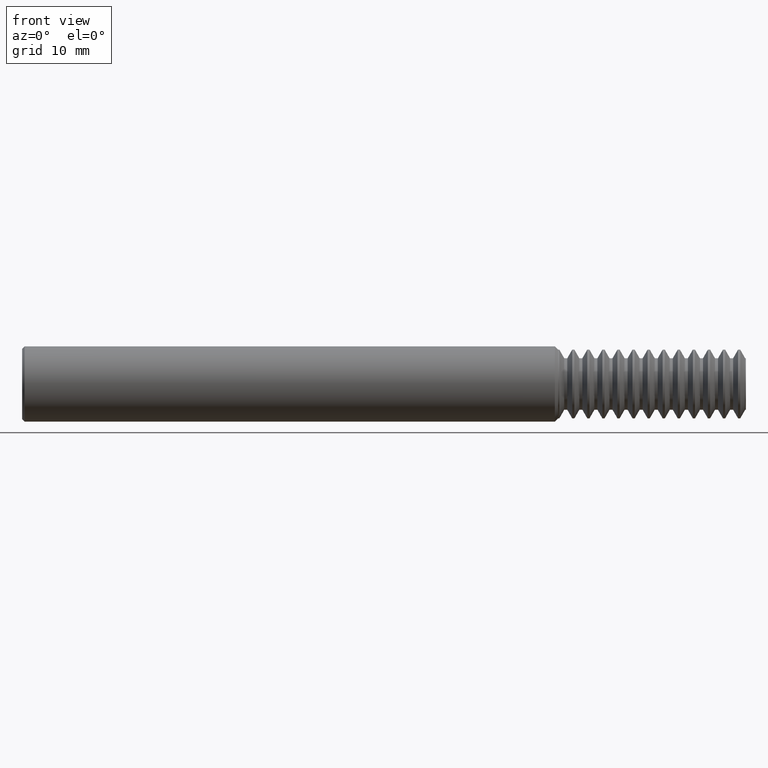
[diagram: clean part render]
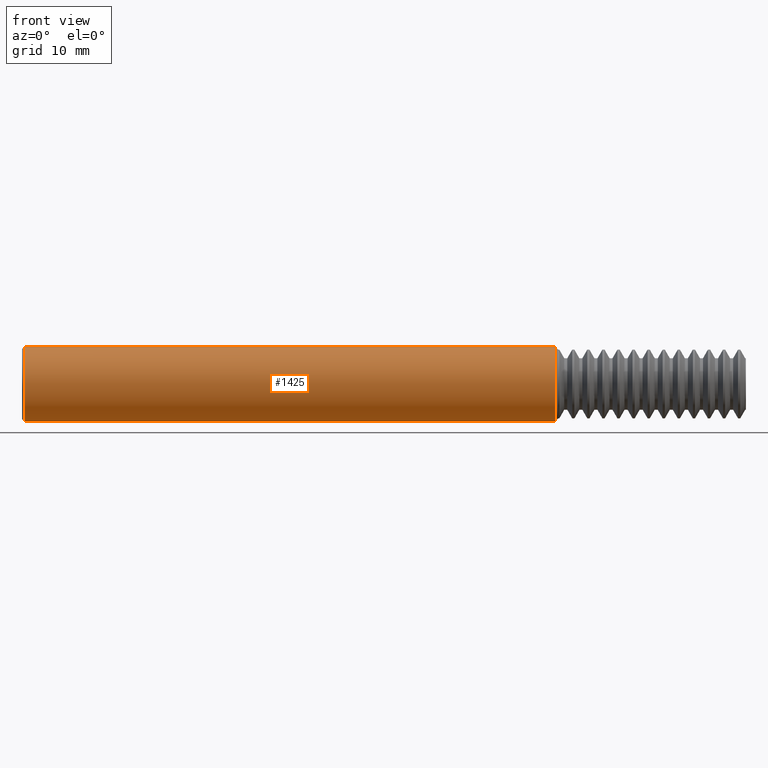
[diagram: same view with one face highlighted and labeled with its STEP entity id]
A machine part, front view. The second image highlights one B-rep face of the part: STEP entity #1425.
In plain terms, the highlighted cylindrical surface (partial cylindrical patch) has radius 3.9649 mm, axis along (1, -0, -0).
Its self-contained STEP definition (entity closure, byte-faithful):
#1 = DIRECTION ( 'NONE',  ( 1.000000000000000000, -0.000000000000000000, -0.000000000000000000 ) ) ;
#19 = DIRECTION ( 'NONE',  ( 1.000000000000000000, -0.000000000000000000, -0.000000000000000000 ) ) ;
#60 = CIRCLE ( 'NONE', #1655, 0.1560999999999999888 ) ;
#87 = EDGE_CURVE ( 'NONE', #390, #1171, #2182, .T. ) ;
#129 = VERTEX_POINT ( 'NONE', #2728 ) ;
#168 = DIRECTION ( 'NONE',  ( 1.000000000000000000, -0.000000000000000000, -0.000000000000000000 ) ) ;
#173 = EDGE_CURVE ( 'NONE', #2052, #1171, #60, .T. ) ;
#390 = VERTEX_POINT ( 'NONE', #687 ) ;
#429 = CIRCLE ( 'NONE', #1255, 0.1560999999999999888 ) ;
#598 = EDGE_LOOP ( 'NONE', ( #1330, #2144, #2450, #609 ) ) ;
#609 = ORIENTED_EDGE ( 'NONE', *, *, #173, .F. ) ;
#611 = AXIS2_PLACEMENT_3D ( 'NONE', #1015, #1701, #2581 ) ;
#666 = DIRECTION ( 'NONE',  ( 0.000000000000000000, 0.000000000000000000, 1.000000000000000000 ) ) ;
#687 = CARTESIAN_POINT ( 'NONE',  ( 0.01000000000000071318, 0.000000000000000000, -0.1560999999999999888 ) ) ;
#901 = CARTESIAN_POINT ( 'NONE',  ( 3.000000000000000444, 1.911673653469018068E-17, 0.1560999999999999888 ) ) ;
#1015 = CARTESIAN_POINT ( 'NONE',  ( 3.000000000000000444, 0.000000000000000000, 0.000000000000000000 ) ) ;
#1171 = VERTEX_POINT ( 'NONE', #2522 ) ;
#1255 = AXIS2_PLACEMENT_3D ( 'NONE', #1317, #1, #666 ) ;
#1317 = CARTESIAN_POINT ( 'NONE',  ( 0.01000000000000071318, 0.000000000000000000, 0.000000000000000000 ) ) ;
#1330 = ORIENTED_EDGE ( 'NONE', *, *, #1600, .F. ) ;
#1381 = CARTESIAN_POINT ( 'NONE',  ( 2.208400000000000141, 1.911673653469018068E-17, 0.1560999999999999888 ) ) ;
#1425 = ADVANCED_FACE ( 'NONE', ( #2332 ), #2089, .T. ) ;
#1594 = EDGE_CURVE ( 'NONE', #129, #390, #429, .T. ) ;
#1600 = EDGE_CURVE ( 'NONE', #129, #2052, #1959, .T. ) ;
#1655 = AXIS2_PLACEMENT_3D ( 'NONE', #2698, #2075, #1980 ) ;
#1701 = DIRECTION ( 'NONE',  ( 1.000000000000000000, -0.000000000000000000, -0.000000000000000000 ) ) ;
#1882 = VECTOR ( 'NONE', #168, 39.37007874015748143 ) ;
#1959 = LINE ( 'NONE', #901, #2660 ) ;
#1980 = DIRECTION ( 'NONE',  ( 0.000000000000000000, 0.000000000000000000, -1.000000000000000000 ) ) ;
#2052 = VERTEX_POINT ( 'NONE', #1381 ) ;
#2075 = DIRECTION ( 'NONE',  ( 1.000000000000000000, -0.000000000000000000, -0.000000000000000000 ) ) ;
#2089 = CYLINDRICAL_SURFACE ( 'NONE', #611, 0.1560999999999999888 ) ;
#2144 = ORIENTED_EDGE ( 'NONE', *, *, #1594, .T. ) ;
#2182 = LINE ( 'NONE', #2625, #1882 ) ;
#2332 = FACE_OUTER_BOUND ( 'NONE', #598, .T. ) ;
#2450 = ORIENTED_EDGE ( 'NONE', *, *, #87, .T. ) ;
#2522 = CARTESIAN_POINT ( 'NONE',  ( 2.208400000000000141, 0.000000000000000000, -0.1560999999999999888 ) ) ;
#2581 = DIRECTION ( 'NONE',  ( 0.000000000000000000, 0.000000000000000000, -1.000000000000000000 ) ) ;
#2625 = CARTESIAN_POINT ( 'NONE',  ( 3.000000000000000444, 0.000000000000000000, -0.1560999999999999888 ) ) ;
#2660 = VECTOR ( 'NONE', #19, 39.37007874015748143 ) ;
#2698 = CARTESIAN_POINT ( 'NONE',  ( 2.208400000000000141, 0.000000000000000000, 0.000000000000000000 ) ) ;
#2728 = CARTESIAN_POINT ( 'NONE',  ( 0.01000000000000071318, 1.911673653469018068E-17, 0.1560999999999999888 ) ) ;